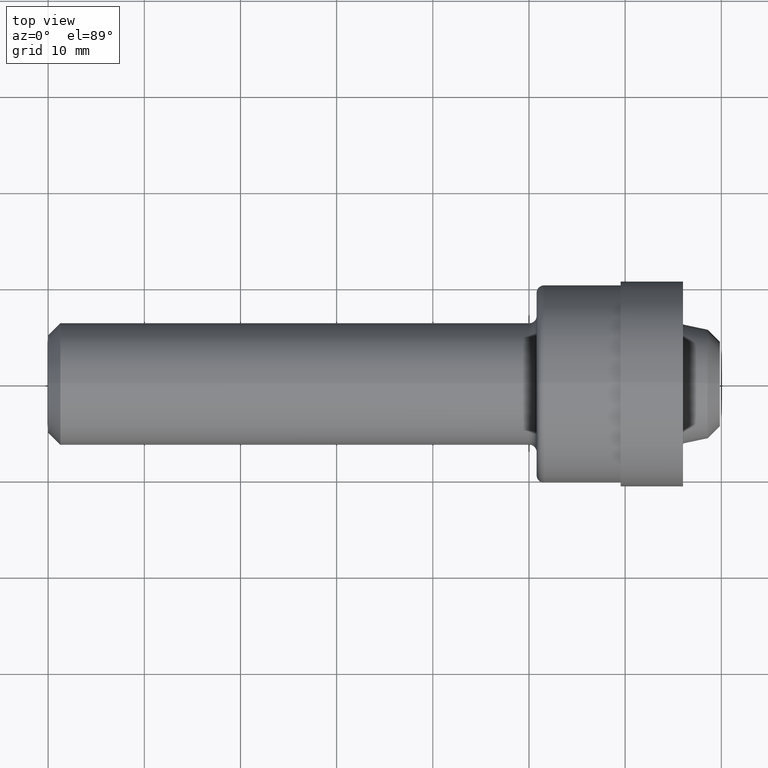
[diagram: clean part render]
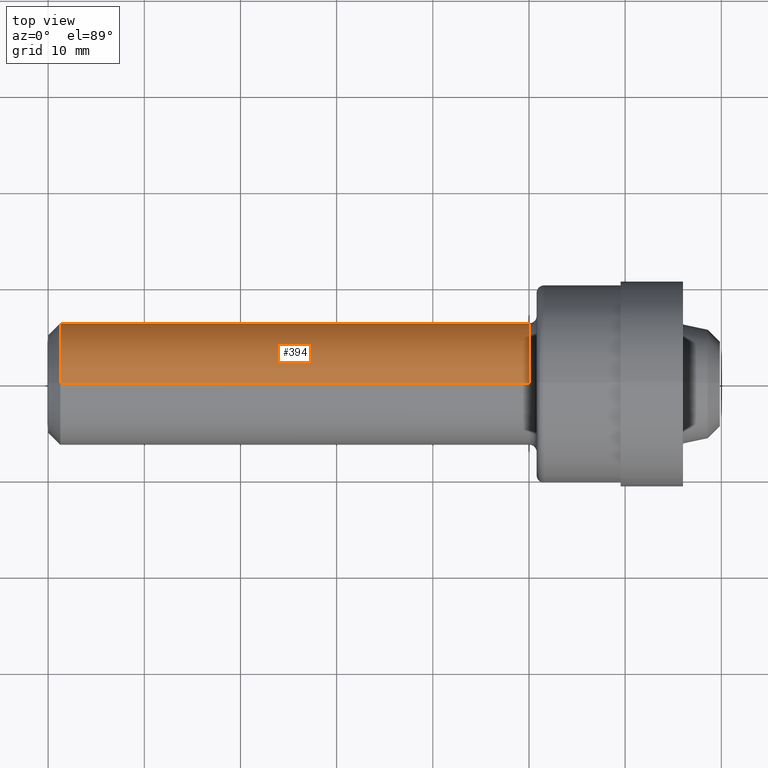
[diagram: same view with one face highlighted and labeled with its STEP entity id]
A machine part, top view. The second image highlights one B-rep face of the part: STEP entity #394.
In plain terms, the highlighted cylindrical surface (partial cylindrical patch) has radius 6.35 mm, axis along (-1, -0, -0).
Its self-contained STEP definition (entity closure, byte-faithful):
#16 = DIRECTION ( 'NONE',  ( -1.000000000000000000, -0.000000000000000000, -0.000000000000000000 ) ) ;
#17 = ORIENTED_EDGE ( 'NONE', *, *, #589, .T. ) ;
#29 = EDGE_CURVE ( 'NONE', #539, #594, #101, .T. ) ;
#45 = CIRCLE ( 'NONE', #235, 0.2500000000000000000 ) ;
#59 = CARTESIAN_POINT ( 'NONE',  ( 1.969999999999999973, 0.000000000000000000, 0.2500000000000000000 ) ) ;
#93 = DIRECTION ( 'NONE',  ( 0.000000000000000000, 0.000000000000000000, 1.000000000000000000 ) ) ;
#98 = EDGE_CURVE ( 'NONE', #378, #594, #132, .T. ) ;
#101 = LINE ( 'NONE', #348, #462 ) ;
#132 = CIRCLE ( 'NONE', #561, 0.2500000000000000000 ) ;
#153 = CARTESIAN_POINT ( 'NONE',  ( 0.000000000000000000, 0.000000000000000000, 0.2500000000000000000 ) ) ;
#164 = FACE_OUTER_BOUND ( 'NONE', #492, .T. ) ;
#181 = AXIS2_PLACEMENT_3D ( 'NONE', #316, #591, #93 ) ;
#192 = CARTESIAN_POINT ( 'NONE',  ( 0.05000000000000000278, 0.000000000000000000, 0.000000000000000000 ) ) ;
#208 = LINE ( 'NONE', #153, #506 ) ;
#216 = ORIENTED_EDGE ( 'NONE', *, *, #98, .F. ) ;
#235 = AXIS2_PLACEMENT_3D ( 'NONE', #420, #457, #363 ) ;
#265 = DIRECTION ( 'NONE',  ( -1.000000000000000000, -0.000000000000000000, -0.000000000000000000 ) ) ;
#316 = CARTESIAN_POINT ( 'NONE',  ( 0.000000000000000000, 0.000000000000000000, 0.000000000000000000 ) ) ;
#323 = ORIENTED_EDGE ( 'NONE', *, *, #608, .F. ) ;
#338 = ORIENTED_EDGE ( 'NONE', *, *, #29, .T. ) ;
#348 = CARTESIAN_POINT ( 'NONE',  ( 0.000000000000000000, 3.061616997868383018E-17, -0.2500000000000000000 ) ) ;
#363 = DIRECTION ( 'NONE',  ( 0.000000000000000000, 0.000000000000000000, 1.000000000000000000 ) ) ;
#372 = CYLINDRICAL_SURFACE ( 'NONE', #181, 0.2500000000000000000 ) ;
#378 = VERTEX_POINT ( 'NONE', #522 ) ;
#393 = VERTEX_POINT ( 'NONE', #59 ) ;
#394 = ADVANCED_FACE ( 'NONE', ( #164 ), #372, .T. ) ;
#420 = CARTESIAN_POINT ( 'NONE',  ( 1.969999999999999973, 0.000000000000000000, 0.000000000000000000 ) ) ;
#455 = DIRECTION ( 'NONE',  ( 0.000000000000000000, 0.000000000000000000, 1.000000000000000000 ) ) ;
#457 = DIRECTION ( 'NONE',  ( -1.000000000000000000, -0.000000000000000000, -0.000000000000000000 ) ) ;
#462 = VECTOR ( 'NONE', #16, 39.37007874015748143 ) ;
#492 = EDGE_LOOP ( 'NONE', ( #17, #338, #216, #323 ) ) ;
#506 = VECTOR ( 'NONE', #265, 39.37007874015748143 ) ;
#522 = CARTESIAN_POINT ( 'NONE',  ( 0.05000000000000000278, 0.000000000000000000, 0.2500000000000000000 ) ) ;
#539 = VERTEX_POINT ( 'NONE', #551 ) ;
#548 = DIRECTION ( 'NONE',  ( -1.000000000000000000, -0.000000000000000000, -0.000000000000000000 ) ) ;
#551 = CARTESIAN_POINT ( 'NONE',  ( 1.969999999999999973, 3.245314017740486209E-17, -0.2500000000000000000 ) ) ;
#556 = CARTESIAN_POINT ( 'NONE',  ( 0.05000000000000000278, 3.061616997868383018E-17, -0.2500000000000000000 ) ) ;
#561 = AXIS2_PLACEMENT_3D ( 'NONE', #192, #548, #455 ) ;
#589 = EDGE_CURVE ( 'NONE', #393, #539, #45, .T. ) ;
#591 = DIRECTION ( 'NONE',  ( -1.000000000000000000, -0.000000000000000000, -0.000000000000000000 ) ) ;
#594 = VERTEX_POINT ( 'NONE', #556 ) ;
#608 = EDGE_CURVE ( 'NONE', #393, #378, #208, .T. ) ;